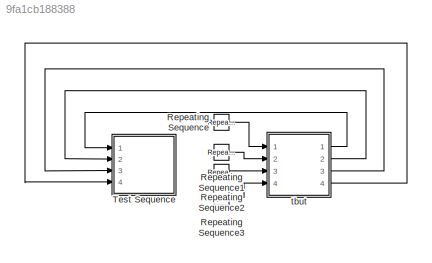
MODEL slx_9fa1cb188388
KIND model
CONFIG AbsTol = auto
CONFIG EnableMultiTasking = off
CONFIG FixedStep = auto
CONFIG MaxStep = auto
CONFIG MinStep = auto
CONFIG RelTol = 1e-3
CONFIG SampleTimeConstraint = Unconstrained
CONFIG Solver = VariableStepAuto
CONFIG SolverName = VariableStepAuto
CONFIG StartTime = 0.0
CONFIG StopTime = 10.0
BLOCK [Reference] Repeating Sequence  REF=simulink/Sources/Repeating
Sequence
  Ports = [0, 1]
  SourceBlock = simulink/Sources/Repeating\nSequence
  SourceProductBaseCode = SL
  SourceType = Repeating table
BLOCK [Reference] Repeating Sequence1  REF=simulink/Sources/Repeating
Sequence
  Ports = [0, 1]
  SourceBlock = simulink/Sources/Repeating\nSequence
  SourceProductBaseCode = SL
  SourceType = Repeating table
BLOCK [Reference] Repeating Sequence2  REF=simulink/Sources/Repeating
Sequence
  Ports = [0, 1]
  SourceBlock = simulink/Sources/Repeating\nSequence
  SourceProductBaseCode = SL
  SourceType = Repeating table
BLOCK [Reference] Repeating Sequence3  REF=simulink/Sources/Repeating
Sequence
  Ports = [0, 1]
  SourceBlock = simulink/Sources/Repeating\nSequence
  SourceProductBaseCode = SL
  SourceType = Repeating table
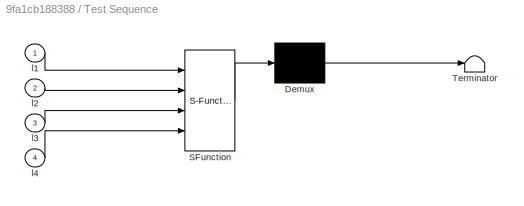
BLOCK [SubSystem] Test Sequence
  ErrorFcn = Stateflow.Translate.translate
  PermitHierarchicalResolution = ExplicitOnly
  Ports = [4]
  RequestExecContextInheritance = off
  SFBlockType = Test Sequence
  TreatAsAtomicUnit = on
BLOCK [Demux] Test Sequence/ Demux 
  Outputs = 1
  Ports = [1, 1]
BLOCK [S-Function] Test Sequence/ SFunction 
  EnableBusSupport = on
  FunctionName = sf_sfun
  PortCounts = [4 1]
  Ports = [4, 1]
  SFcnIsStateOwnerBlock = off
  SFunctionDeploymentMode = off
  Tag = Stateflow S-Function 4
BLOCK [Terminator] Test Sequence/ Terminator 
BLOCK [Inport] Test Sequence/l1
BLOCK [Inport] Test Sequence/l2
  Port = 2
BLOCK [Inport] Test Sequence/l3
  Port = 3
BLOCK [Inport] Test Sequence/l4
  Port = 4
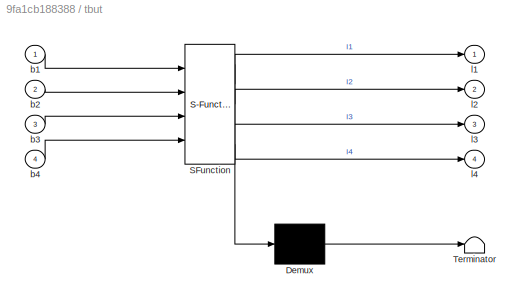
BLOCK [SubSystem] tbut
  ErrorFcn = Stateflow.Translate.translate
  PermitHierarchicalResolution = ExplicitOnly
  Ports = [4, 4]
  RequestExecContextInheritance = off
  SFBlockType = Chart
  TreatAsAtomicUnit = on
BLOCK [Demux] tbut/ Demux 
  Outputs = 1
  Ports = [1, 1]
BLOCK [S-Function] tbut/ SFunction 
  EnableBusSupport = on
  FunctionName = sf_sfun
  PortCounts = [4 5]
  Ports = [4, 5]
  SFcnIsStateOwnerBlock = off
  SFunctionDeploymentMode = off
  Tag = Stateflow S-Function 3
BLOCK [Terminator] tbut/ Terminator 
BLOCK [Inport] tbut/b1
BLOCK [Inport] tbut/b2
  Port = 2
BLOCK [Inport] tbut/b3
  Port = 3
BLOCK [Inport] tbut/b4
  Port = 4
BLOCK [Outport] tbut/l1
  VectorParamsAs1DForOutWhenUnconnected = off
BLOCK [Outport] tbut/l2
  Port = 2
  VectorParamsAs1DForOutWhenUnconnected = off
BLOCK [Outport] tbut/l3
  Port = 3
  VectorParamsAs1DForOutWhenUnconnected = off
BLOCK [Outport] tbut/l4
  Port = 4
  VectorParamsAs1DForOutWhenUnconnected = off
LINE Repeating Sequence1:1 -> tbut:2
LINE Repeating Sequence2:1 -> tbut:3
LINE Repeating Sequence3:1 -> tbut:4
LINE Repeating Sequence:1 -> tbut:1
LINE tbut:1 -> Test Sequence:1
LINE tbut:2 -> Test Sequence:2
LINE tbut:3 -> Test Sequence:3
LINE tbut:4 -> Test Sequence:4
CHART tbut states=12 transitions=16
  STATE_LABEL 'fled_1\n\n'
  STATE_LABEL 'I\n'
  STATE_LABEL 'II\nl1 = ~l1;'
  STATE_LABEL '[b1==1]'
  STATE_LABEL '[b1==1]'
  STATE_LABEL 'I\n'
  STATE_LABEL 'II\nl1 = ~l1;'
  STATE_LABEL 'fled_2\n'
  STATE_LABEL 'I\n'
  STATE_LABEL 'II\nl2 = ~l2;'
  STATE_LABEL '[b2==1]'
  STATE_LABEL '[b2==1]'
  STATE_LABEL 'I\n'
  STATE_LABEL 'II\nl2 = ~l2;'
  STATE_LABEL 'fled_3\n'
  STATE_LABEL 'I\n'
  STATE_LABEL 'II\nl3 = ~l3;'
  STATE_LABEL '[b3==1]'
  STATE_LABEL '[b3==1]'
  STATE_LABEL 'I\n'
  STATE_LABEL 'II\nl3 = ~l3;'
  STATE_LABEL 'fled_4\n\n'
  STATE_LABEL 'I\n'
  STATE_LABEL 'II\nl4 = ~l4;'
  STATE_LABEL '[b4==1]'
  STATE_LABEL '[b4==1]'
  STATE_LABEL 'I\n'
  STATE_LABEL 'II\nl4 = ~l4;'
CHART Test Sequence states=7 transitions=7
  STATE_LABEL 'step_1\nverify(l1==false&& l2==false && l3==false && l4==false)'
  STATE_LABEL 'step_2\nverify(l1==true&& l2==true && l3==true && l4==true)'
  STATE_LABEL 'step_3\nverify(l1==false&& l2==true&& l3==true&& l4==true)'
  STATE_LABEL 'step_4\nverify(l1==false && l2==false && l3==true&& l4==true)'
  STATE_LABEL 'step_5\nverify(l1==false && l2==false&& l3==false&& l4==true)'
  STATE_LABEL 'step_6\nverify(l1==false&& l2==false && l3==false && l4==false)'
  STATE_LABEL 'step_7'
CHART  states=0 transitions=0
CHART  states=0 transitions=0
